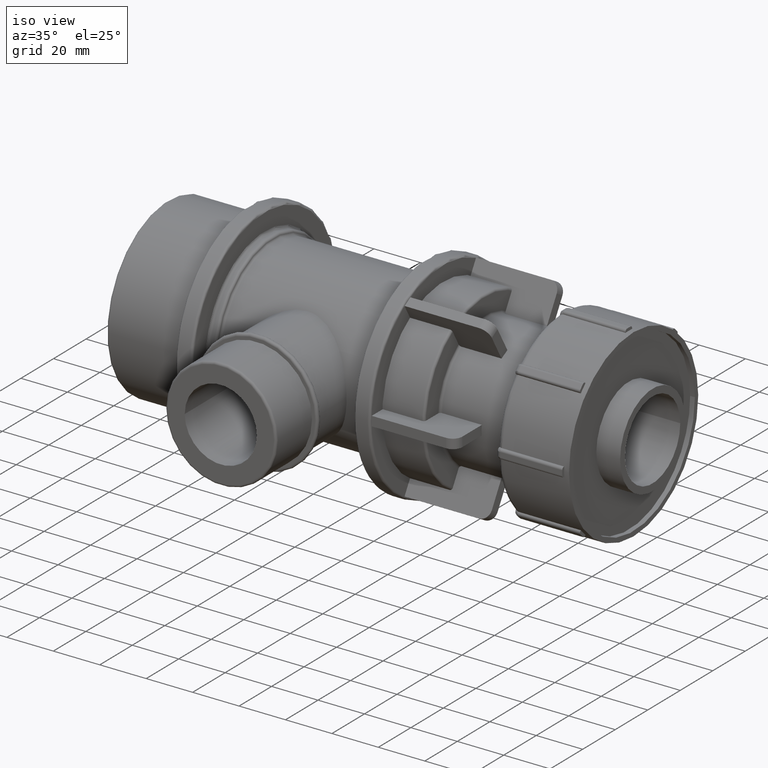
[diagram: clean part render]
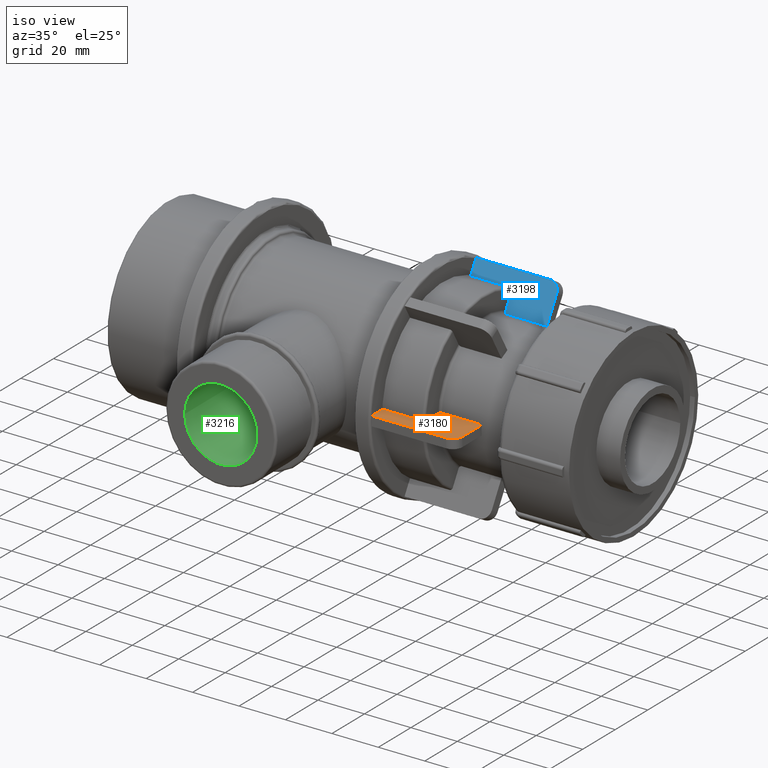
[diagram: same view with three faces highlighted in distinct colors, each labeled with its STEP entity id]
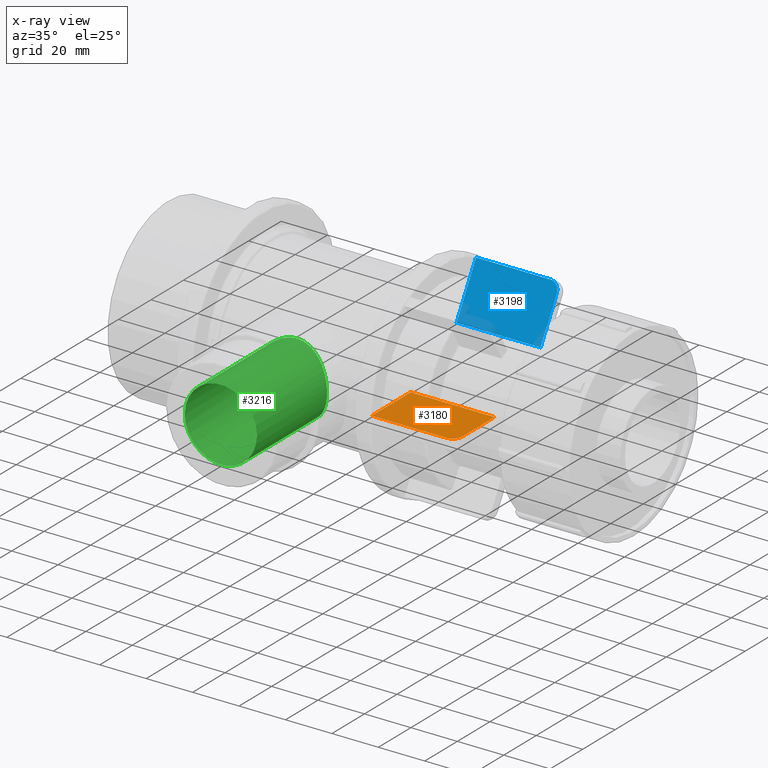
[diagram: x-ray of the same camera — body ghosted, the three highlighted faces saturated]
A machine part, iso view with three faces highlighted in distinct colors.
The next image is the same camera in x-ray (body ghosted, the three faces saturated) — at least one of them is partly hidden behind the body in this view.
Their STEP definitions:

[orange] entity #3180 — the highlighted planar face has unit normal (0, 0, 1).
#161=LINE('',#6019,#343);
#164=LINE('',#6025,#346);
#165=LINE('',#6027,#347);
#166=LINE('',#6028,#348);
#343=VECTOR('',#4402,32.07);
#346=VECTOR('',#4407,19.9);
#347=VECTOR('',#4408,36.17);
#348=VECTOR('',#4409,24.);
#485=PLANE('',#3556);
#697=CIRCLE('',#3554,4.1);
#973=FACE_OUTER_BOUND('',#1234,.T.);
#1234=EDGE_LOOP('',(#2802,#2803,#2804,#2805,#2806));
#1579=VERTEX_POINT('',#6012);
#1580=VERTEX_POINT('',#6014);
#1581=VERTEX_POINT('',#6018);
#1583=VERTEX_POINT('',#6024);
#1584=VERTEX_POINT('',#6026);
#1995=EDGE_CURVE('',#1579,#1580,#697,.T.);
#1997=EDGE_CURVE('',#1581,#1580,#161,.T.);
#2000=EDGE_CURVE('',#1579,#1583,#164,.T.);
#2001=EDGE_CURVE('',#1583,#1584,#165,.T.);
#2002=EDGE_CURVE('',#1584,#1581,#166,.T.);
#2802=ORIENTED_EDGE('',*,*,#1995,.F.);
#2803=ORIENTED_EDGE('',*,*,#2000,.T.);
#2804=ORIENTED_EDGE('',*,*,#2001,.T.);
#2805=ORIENTED_EDGE('',*,*,#2002,.T.);
#2806=ORIENTED_EDGE('',*,*,#1997,.T.);
#3180=ADVANCED_FACE('',(#973),#485,.T.);
#3554=AXIS2_PLACEMENT_3D('',#6015,#4397,#4398);
#3556=AXIS2_PLACEMENT_3D('',#6023,#4405,#4406);
#4397=DIRECTION('center_axis',(0.,-1.66533453693773E-16,-1.));
#4398=DIRECTION('ref_axis',(0.707106781186547,-0.707106781186547,6.76965258917778E-17));
#4402=DIRECTION('',(1.,0.,0.));
#4405=DIRECTION('center_axis',(0.,1.66533453693773E-16,1.));
#4406=DIRECTION('ref_axis',(-1.,0.,0.));
#4407=DIRECTION('',(0.,1.,-1.66533453693773E-16));
#4408=DIRECTION('',(-1.,2.45556654603297E-16,-3.69778549322349E-32));
#4409=DIRECTION('',(0.,-1.,1.66533453693773E-16));
#6012=CARTESIAN_POINT('',(78.07,-39.9,2.05000000000001));
#6014=CARTESIAN_POINT('',(73.97,-44.,2.05000000000001));
#6015=CARTESIAN_POINT('Origin',(73.97,-39.9,2.05000000000001));
#6018=CARTESIAN_POINT('',(41.9,-44.,2.05000000000001));
#6019=CARTESIAN_POINT('',(78.07,-44.,2.05000000000001));
#6023=CARTESIAN_POINT('Origin',(59.985,-32.,2.05000000000001));
#6024=CARTESIAN_POINT('',(78.07,-20.,2.05));
#6025=CARTESIAN_POINT('',(78.07,-28.125,2.05000000000001));
#6026=CARTESIAN_POINT('',(41.9,-20.,2.05000000000001));
#6027=CARTESIAN_POINT('',(41.9,-20.,2.05000000000001));
#6028=CARTESIAN_POINT('',(41.9,-44.,2.05000000000001));

[blue] entity #3198 — the highlighted planar face has unit normal (0, -0.866, 0.5).
#189=LINE('',#6086,#371);
#193=LINE('',#6095,#375);
#195=LINE('',#6099,#377);
#197=LINE('',#6102,#379);
#371=VECTOR('',#4466,32.07);
#375=VECTOR('',#4474,19.9);
#377=VECTOR('',#4478,36.17);
#379=VECTOR('',#4482,24.);
#501=PLANE('',#3578);
#700=CIRCLE('',#3571,4.1);
#991=FACE_OUTER_BOUND('',#1252,.T.);
#1252=EDGE_LOOP('',(#2879,#2880,#2881,#2882,#2883));
#1597=VERTEX_POINT('',#6073);
#1598=VERTEX_POINT('',#6074);
#1602=VERTEX_POINT('',#6084);
#1605=VERTEX_POINT('',#6094);
#1606=VERTEX_POINT('',#6098);
#2023=EDGE_CURVE('',#1597,#1598,#700,.T.);
#2029=EDGE_CURVE('',#1597,#1602,#189,.T.);
#2033=EDGE_CURVE('',#1605,#1598,#193,.T.);
#2035=EDGE_CURVE('',#1606,#1605,#195,.T.);
#2037=EDGE_CURVE('',#1602,#1606,#197,.T.);
#2879=ORIENTED_EDGE('',*,*,#2023,.F.);
#2880=ORIENTED_EDGE('',*,*,#2029,.T.);
#2881=ORIENTED_EDGE('',*,*,#2037,.T.);
#2882=ORIENTED_EDGE('',*,*,#2035,.T.);
#2883=ORIENTED_EDGE('',*,*,#2033,.T.);
#3198=ADVANCED_FACE('',(#991),#501,.T.);
#3571=AXIS2_PLACEMENT_3D('',#6075,#4456,#4457);
#3578=AXIS2_PLACEMENT_3D('',#6103,#4483,#4484);
#4456=DIRECTION('center_axis',(0.,0.866025403784439,-0.5));
#4457=DIRECTION('ref_axis',(0.707106781186547,0.353553390593274,0.612372435695794));
#4466=DIRECTION('',(-1.,0.,0.));
#4474=DIRECTION('',(1.09314267040015E-15,0.5,0.866025403784439));
#4478=DIRECTION('',(1.,1.22778327301649E-16,2.12658300954776E-16));
#4482=DIRECTION('',(0.,-0.5,-0.866025403784439));
#4483=DIRECTION('center_axis',(0.,-0.866025403784439,0.5));
#4484=DIRECTION('ref_axis',(1.,0.,0.));
#6073=CARTESIAN_POINT('',(73.97,20.2246479222419,39.1301177665153));
#6074=CARTESIAN_POINT('',(78.07,18.1746479222419,35.5794136109991));
#6075=CARTESIAN_POINT('Origin',(73.97,18.1746479222419,35.5794136109991));
#6084=CARTESIAN_POINT('',(41.9,20.2246479222419,39.1301177665153));
#6086=CARTESIAN_POINT('',(78.07,20.2246479222419,39.1301177665153));
#6094=CARTESIAN_POINT('',(78.07,8.2246479222419,18.3455080756888));
#6095=CARTESIAN_POINT('',(78.07,8.2246479222419,18.3455080756888));
#6098=CARTESIAN_POINT('',(41.9,8.2246479222419,18.3455080756888));
#6099=CARTESIAN_POINT('',(41.9,8.2246479222419,18.3455080756888));
#6102=CARTESIAN_POINT('',(41.9,20.2246479222419,39.1301177665153));
#6103=CARTESIAN_POINT('Origin',(59.985,14.2246479222419,28.737812921102));

[green] entity #3216 — the highlighted cylindrical surface (bore or boss wall) has radius 15.536 mm, axis along (-0, 1, 0).
#712=CIRCLE('',#3604,15.535975);
#797=FACE_BOUND('',#1281,.T.);
#1009=FACE_OUTER_BOUND('',#1280,.T.);
#1280=EDGE_LOOP('',(#2934));
#1281=EDGE_LOOP('',(#2935));
#1333=B_SPLINE_CURVE_WITH_KNOTS('',3,(#6205,#6206,#6207,#6208,#6209,#6210,
#6211,#6212,#6213,#6214,#6215,#6216,#6217,#6218,#6219,#6220,#6221,#6222,
#6223,#6224,#6225,#6226,#6227,#6228,#6229,#6230,#6231,#6232,#6233,#6234,
#6235,#6236,#6237,#6238,#6239,#6240,#6241,#6242,#6243,#6244,#6245,#6246,
#6247,#6248,#6249,#6250,#6251,#6252,#6253,#6254),.UNSPECIFIED.,.T.,.F.,
(4,2,2,2,2,2,2,2,2,2,2,2,2,2,2,2,2,2,2,2,2,2,2,2,4),(0.,0.297846823282371,
0.595693646564742,1.19138729312948,1.78596310865965,2.08325101642473,2.38053892418982,
2.6778268319549,2.97511473971998,3.56969055525015,4.16538420181489,4.46323102509726,
4.76107784837963,5.058924671662,5.35677149494437,5.95246514150912,6.54704095703928,
6.84432886480437,7.14161677256945,7.43890468033453,7.73619258809962,8.33076840362978,
8.92646205019453,9.2243088734769,9.52215569675927),.UNSPECIFIED.);
#1618=VERTEX_POINT('',#6204);
#1627=VERTEX_POINT('',#6278);
#2054=EDGE_CURVE('',#1618,#1618,#1333,.T.);
#2063=EDGE_CURVE('',#1627,#1627,#712,.T.);
#2934=ORIENTED_EDGE('',*,*,#2054,.T.);
#2935=ORIENTED_EDGE('',*,*,#2063,.F.);
#3004=CYLINDRICAL_SURFACE('',#3607,15.535975);
#3216=ADVANCED_FACE('',(#1009,#797),#3004,.F.);
#3604=AXIS2_PLACEMENT_3D('',#6279,#4548,#4549);
#3607=AXIS2_PLACEMENT_3D('',#6282,#4554,#4555);
#4548=DIRECTION('center_axis',(-1.22464679914735E-16,1.,0.));
#4549=DIRECTION('ref_axis',(1.,1.22464679914735E-16,0.));
#4554=DIRECTION('center_axis',(-1.22464679914735E-16,1.,0.));
#4555=DIRECTION('ref_axis',(-1.,0.,0.));
#6204=CARTESIAN_POINT('',(1.77635683940025E-14,-29.9615750720715,15.535975));
#6205=CARTESIAN_POINT('Ctrl Pts',(1.77635683940025E-14,-29.9615750720715,
15.535975));
#6206=CARTESIAN_POINT('Ctrl Pts',(0.992822744274587,-29.9615750720715,15.535975));
#6207=CARTESIAN_POINT('Ctrl Pts',(2.01364809435463,-30.0123489016254,15.4392955990789));
#6208=CARTESIAN_POINT('Ctrl Pts',(4.03350492890022,-30.2151529798586,15.0385326883145));
#6209=CARTESIAN_POINT('Ctrl Pts',(5.03259602221334,-30.3668860694912,14.7345993043153));
#6210=CARTESIAN_POINT('Ctrl Pts',(7.89475542570883,-30.9276894483553,13.539393087408));
#6211=CARTESIAN_POINT('Ctrl Pts',(9.62136532238343,-31.4424249343702,12.3498212273059));
#6212=CARTESIAN_POINT('Ctrl Pts',(12.3472612262848,-32.3808033595306,9.62392532340457));
#6213=CARTESIAN_POINT('Ctrl Pts',(13.5387395992768,-32.8705926631432,7.89640541234864));
#6214=CARTESIAN_POINT('Ctrl Pts',(14.7350749686837,-33.3869587517985,5.03141440189864));
#6215=CARTESIAN_POINT('Ctrl Pts',(15.0391142523387,-33.523709188,4.03137400186706));
#6216=CARTESIAN_POINT('Ctrl Pts',(15.4396292398893,-33.7052855096937,2.01116453234764));
#6217=CARTESIAN_POINT('Ctrl Pts',(15.535975,-33.75,0.990959692550278));
#6218=CARTESIAN_POINT('Ctrl Pts',(15.535975,-33.75,-0.990959692550275));
#6219=CARTESIAN_POINT('Ctrl Pts',(15.4396292398893,-33.7052855096937,-2.01116453234763));
#6220=CARTESIAN_POINT('Ctrl Pts',(15.0391142523387,-33.523709188,-4.03137400186706));
#6221=CARTESIAN_POINT('Ctrl Pts',(14.7350749686837,-33.3869587517985,-5.03141440189863));
#6222=CARTESIAN_POINT('Ctrl Pts',(13.5387395992768,-32.8705926631432,-7.89640541234863));
#6223=CARTESIAN_POINT('Ctrl Pts',(12.3472612262848,-32.3808033595306,-9.62392532340456));
#6224=CARTESIAN_POINT('Ctrl Pts',(9.62136532238343,-31.4424249343702,-12.3498212273059));
#6225=CARTESIAN_POINT('Ctrl Pts',(7.89475542570883,-30.9276894483553,-13.539393087408));
#6226=CARTESIAN_POINT('Ctrl Pts',(5.03259602221335,-30.3668860694912,-14.7345993043153));
#6227=CARTESIAN_POINT('Ctrl Pts',(4.03350492890022,-30.2151529798586,-15.0385326883145));
#6228=CARTESIAN_POINT('Ctrl Pts',(2.01364809435463,-30.0123489016254,-15.4392955990789));
#6229=CARTESIAN_POINT('Ctrl Pts',(0.992822744274588,-29.9615750720715,-15.535975));
#6230=CARTESIAN_POINT('Ctrl Pts',(-0.992822744274552,-29.9615750720715,
-15.535975));
#6231=CARTESIAN_POINT('Ctrl Pts',(-2.0136480943546,-30.0123489016254,-15.4392955990789));
#6232=CARTESIAN_POINT('Ctrl Pts',(-4.03350492890019,-30.2151529798586,-15.0385326883145));
#6233=CARTESIAN_POINT('Ctrl Pts',(-5.03259602221331,-30.3668860694912,-14.7345993043153));
#6234=CARTESIAN_POINT('Ctrl Pts',(-7.8947554257088,-30.9276894483553,-13.539393087408));
#6235=CARTESIAN_POINT('Ctrl Pts',(-9.62136532238341,-31.4424249343702,-12.3498212273059));
#6236=CARTESIAN_POINT('Ctrl Pts',(-12.3472612262848,-32.3808033595306,-9.62392532340458));
#6237=CARTESIAN_POINT('Ctrl Pts',(-13.5387395992768,-32.8705926631432,-7.89640541234865));
#6238=CARTESIAN_POINT('Ctrl Pts',(-14.7350749686836,-33.3869587517985,-5.03141440189865));
#6239=CARTESIAN_POINT('Ctrl Pts',(-15.0391142523387,-33.523709188,-4.03137400186708));
#6240=CARTESIAN_POINT('Ctrl Pts',(-15.4396292398892,-33.7052855096937,-2.01116453234764));
#6241=CARTESIAN_POINT('Ctrl Pts',(-15.535975,-33.75,-0.990959692550285));
#6242=CARTESIAN_POINT('Ctrl Pts',(-15.535975,-33.75,0.990959692550277));
#6243=CARTESIAN_POINT('Ctrl Pts',(-15.4396292398892,-33.7052855096937,2.01116453234764));
#6244=CARTESIAN_POINT('Ctrl Pts',(-15.0391142523387,-33.523709188,4.03137400186707));
#6245=CARTESIAN_POINT('Ctrl Pts',(-14.7350749686836,-33.3869587517985,5.03141440189864));
#6246=CARTESIAN_POINT('Ctrl Pts',(-13.5387395992768,-32.8705926631432,7.89640541234864));
#6247=CARTESIAN_POINT('Ctrl Pts',(-12.3472612262848,-32.3808033595306,9.62392532340458));
#6248=CARTESIAN_POINT('Ctrl Pts',(-9.62136532238341,-31.4424249343702,12.3498212273059));
#6249=CARTESIAN_POINT('Ctrl Pts',(-7.8947554257088,-30.9276894483553,13.539393087408));
#6250=CARTESIAN_POINT('Ctrl Pts',(-5.03259602221332,-30.3668860694913,14.7345993043153));
#6251=CARTESIAN_POINT('Ctrl Pts',(-4.0335049289002,-30.2151529798586,15.0385326883145));
#6252=CARTESIAN_POINT('Ctrl Pts',(-2.01364809435461,-30.0123489016254,15.4392955990789));
#6253=CARTESIAN_POINT('Ctrl Pts',(-0.992822744274556,-29.9615750720715,
15.535975));
#6254=CARTESIAN_POINT('Ctrl Pts',(1.72084568816899E-14,-29.9615750720715,
15.535975));
#6278=CARTESIAN_POINT('',(-15.535975,-77.,0.));
#6279=CARTESIAN_POINT('Origin',(9.42978035343462E-15,-77.,0.));
#6282=CARTESIAN_POINT('Origin',(4.71406426751053E-15,-38.49325593953,0.));